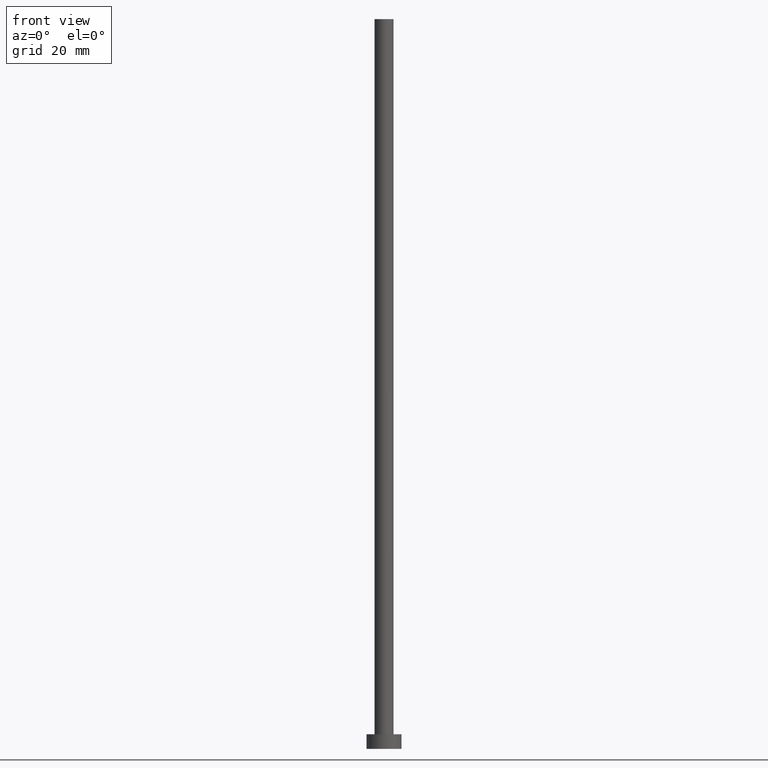
[diagram: clean part render]
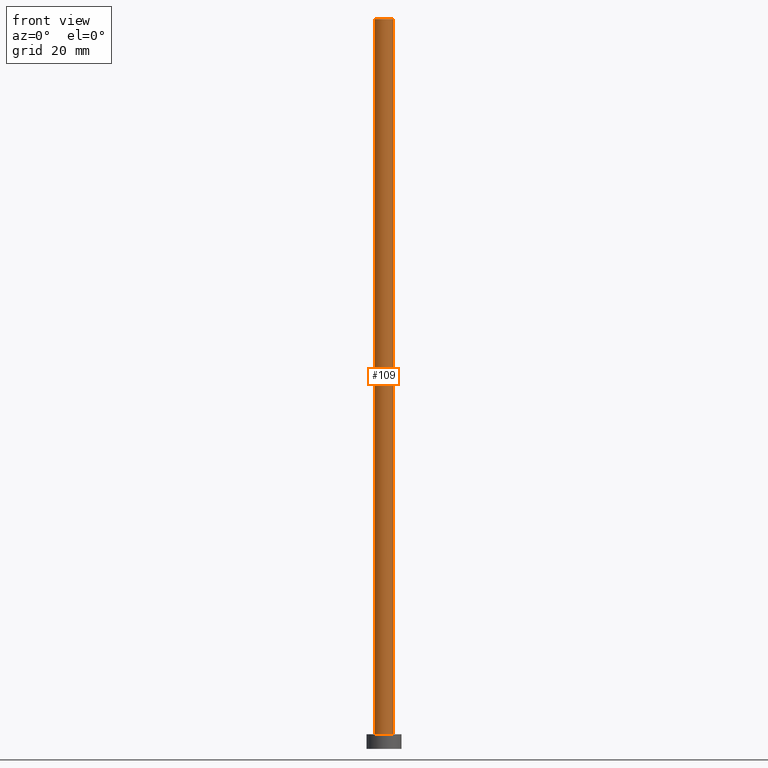
[diagram: same view with one face highlighted and labeled with its STEP entity id]
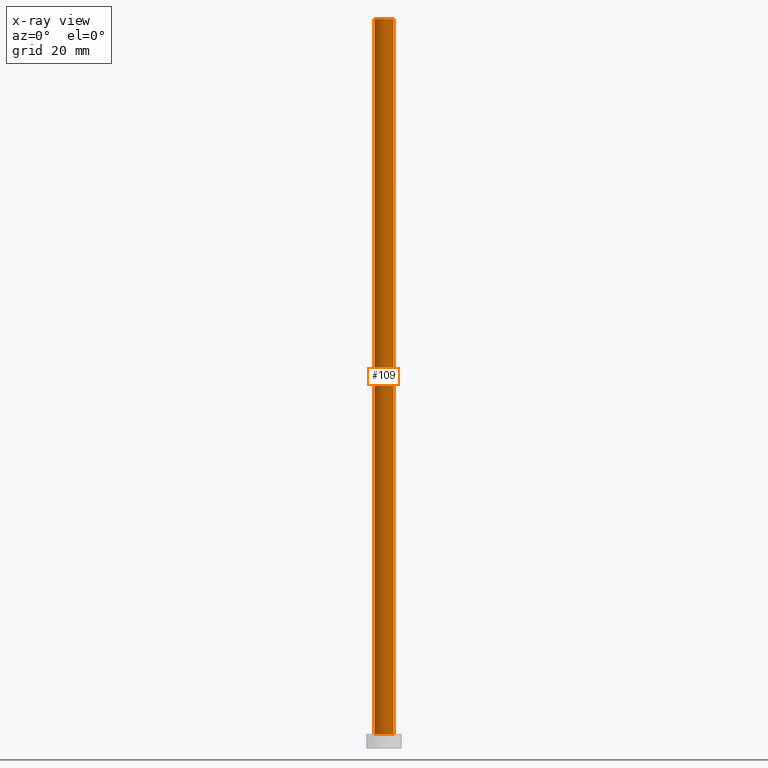
[diagram: x-ray of the same camera — body ghosted, the highlighted face saturated]
A machine part, front view. The second image highlights one B-rep face of the part: STEP entity #109.
The next image is the same camera in x-ray: the body ghosted, the highlighted face saturated — about 0% of this face is hidden behind the body in this view.
In plain terms, the highlighted cylindrical surface (edge-blend (fillet) strip) has radius 3.25 mm, axis along (-0, -0, -1).
Its self-contained STEP definition (entity closure, byte-faithful):
#7 = ORIENTED_EDGE ( 'NONE', *, *, #90, .T. ) ;
#8 = DIRECTION ( 'NONE',  ( -0.000000000000000000, -0.000000000000000000, -1.000000000000000000 ) ) ;
#11 = AXIS2_PLACEMENT_3D ( 'NONE', #145, #196, #134 ) ;
#12 = VERTEX_POINT ( 'NONE', #100 ) ;
#29 = EDGE_LOOP ( 'NONE', ( #142, #220, #7, #116 ) ) ;
#31 = CARTESIAN_POINT ( 'NONE',  ( -3.250000000000000444, 0.000000000000000000, 250.0000000000000000 ) ) ;
#50 = VERTEX_POINT ( 'NONE', #55 ) ;
#55 = CARTESIAN_POINT ( 'NONE',  ( -3.250000000000000444, 0.000000000000000000, 5.000000000000000000 ) ) ;
#61 = DIRECTION ( 'NONE',  ( -1.000000000000000000, 0.000000000000000000, 0.000000000000000000 ) ) ;
#63 = AXIS2_PLACEMENT_3D ( 'NONE', #123, #107, #122 ) ;
#81 = VERTEX_POINT ( 'NONE', #31 ) ;
#84 = CYLINDRICAL_SURFACE ( 'NONE', #143, 3.250000000000000444 ) ;
#85 = CARTESIAN_POINT ( 'NONE',  ( 3.250000000000000444, 3.980102097228898231E-16, 5.000000000000000000 ) ) ;
#88 = VECTOR ( 'NONE', #8, 1000.000000000000000 ) ;
#90 = EDGE_CURVE ( 'NONE', #81, #50, #219, .T. ) ;
#100 = CARTESIAN_POINT ( 'NONE',  ( 3.250000000000000444, 3.980102097228898231E-16, 250.0000000000000000 ) ) ;
#107 = DIRECTION ( 'NONE',  ( 0.000000000000000000, 0.000000000000000000, 1.000000000000000000 ) ) ;
#109 = ADVANCED_FACE ( 'NONE', ( #193 ), #84, .T. ) ;
#114 = CARTESIAN_POINT ( 'NONE',  ( -3.250000000000000444, 0.000000000000000000, 250.0000000000000000 ) ) ;
#115 = DIRECTION ( 'NONE',  ( -0.000000000000000000, -0.000000000000000000, -1.000000000000000000 ) ) ;
#116 = ORIENTED_EDGE ( 'NONE', *, *, #175, .T. ) ;
#122 = DIRECTION ( 'NONE',  ( 1.000000000000000000, 0.000000000000000000, 0.000000000000000000 ) ) ;
#123 = CARTESIAN_POINT ( 'NONE',  ( 0.000000000000000000, 0.000000000000000000, 5.000000000000000000 ) ) ;
#124 = CIRCLE ( 'NONE', #11, 3.250000000000000444 ) ;
#134 = DIRECTION ( 'NONE',  ( 1.000000000000000000, 0.000000000000000000, 0.000000000000000000 ) ) ;
#142 = ORIENTED_EDGE ( 'NONE', *, *, #244, .F. ) ;
#143 = AXIS2_PLACEMENT_3D ( 'NONE', #170, #249, #61 ) ;
#145 = CARTESIAN_POINT ( 'NONE',  ( 0.000000000000000000, 0.000000000000000000, 250.0000000000000000 ) ) ;
#146 = VERTEX_POINT ( 'NONE', #85 ) ;
#170 = CARTESIAN_POINT ( 'NONE',  ( 0.000000000000000000, 0.000000000000000000, 250.0000000000000000 ) ) ;
#171 = CARTESIAN_POINT ( 'NONE',  ( 3.250000000000000444, 3.980102097228898231E-16, 250.0000000000000000 ) ) ;
#175 = EDGE_CURVE ( 'NONE', #50, #146, #188, .T. ) ;
#188 = CIRCLE ( 'NONE', #63, 3.250000000000000444 ) ;
#193 = FACE_OUTER_BOUND ( 'NONE', #29, .T. ) ;
#196 = DIRECTION ( 'NONE',  ( 0.000000000000000000, 0.000000000000000000, 1.000000000000000000 ) ) ;
#219 = LINE ( 'NONE', #114, #222 ) ;
#220 = ORIENTED_EDGE ( 'NONE', *, *, #229, .F. ) ;
#222 = VECTOR ( 'NONE', #115, 1000.000000000000000 ) ;
#229 = EDGE_CURVE ( 'NONE', #81, #12, #124, .T. ) ;
#238 = LINE ( 'NONE', #171, #88 ) ;
#244 = EDGE_CURVE ( 'NONE', #12, #146, #238, .T. ) ;
#249 = DIRECTION ( 'NONE',  ( -0.000000000000000000, -0.000000000000000000, -1.000000000000000000 ) ) ;